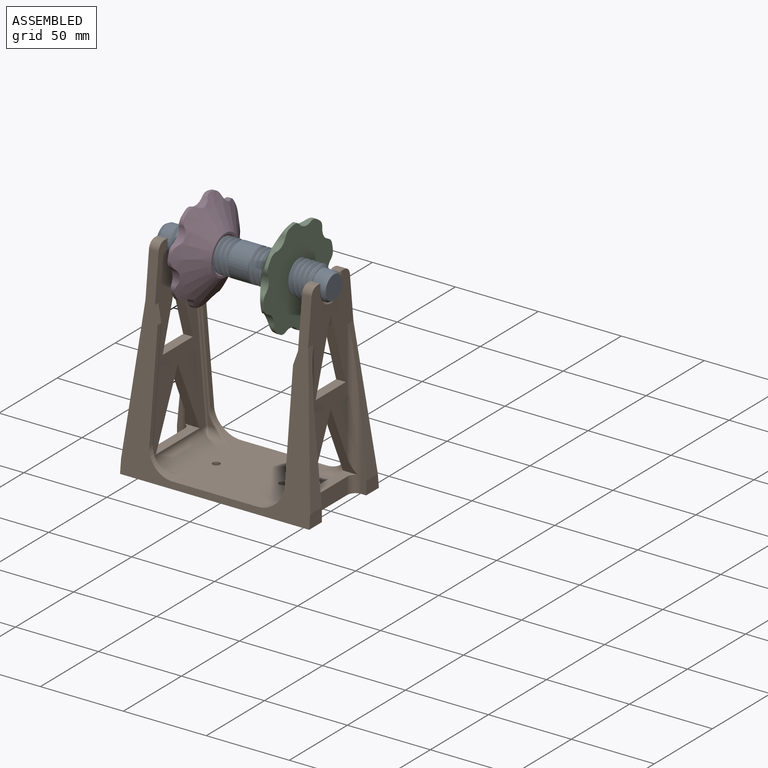
[diagram: assembled view]
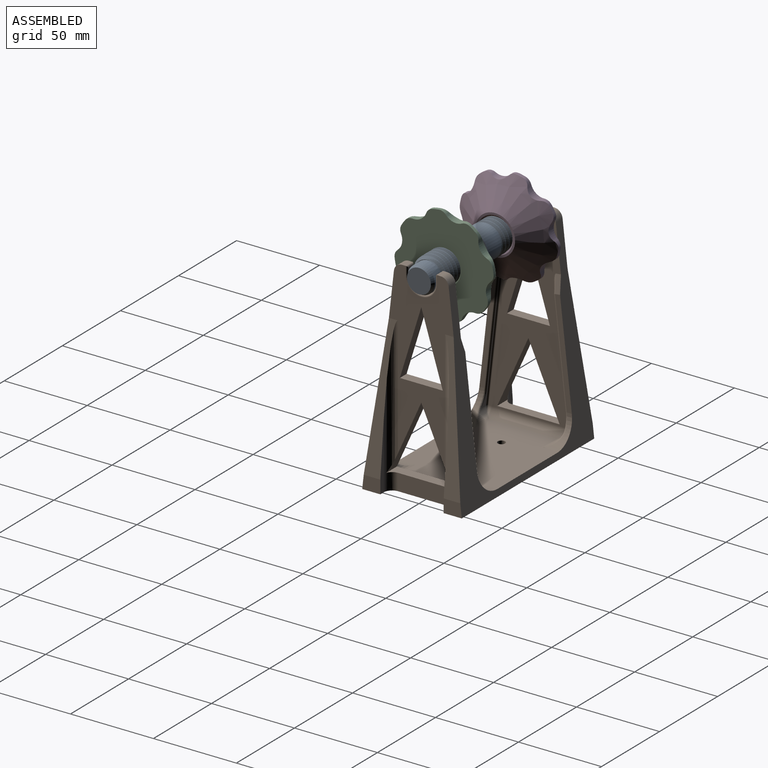
[diagram: assembled view, second angle]
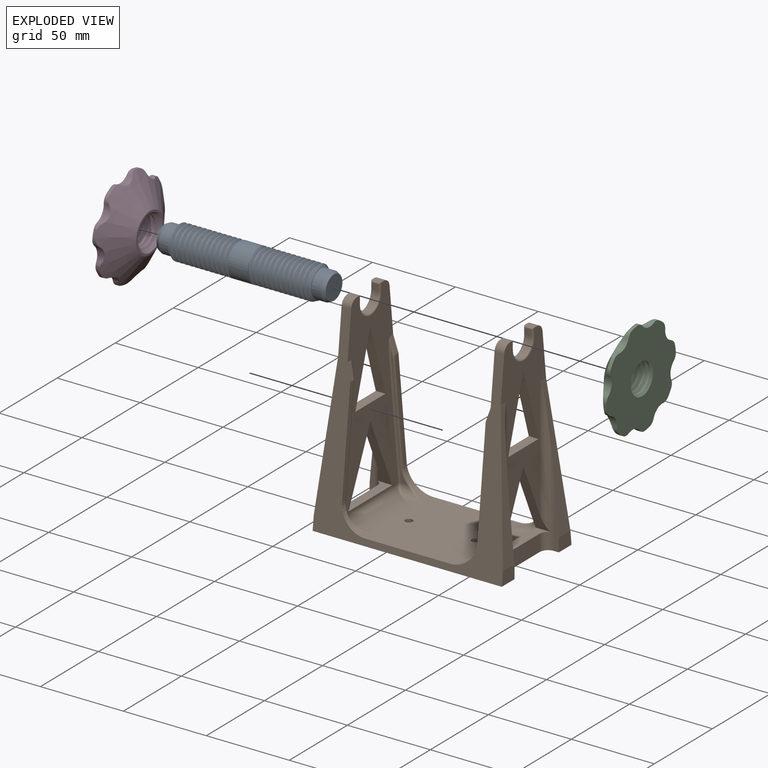
[diagram: exploded view]
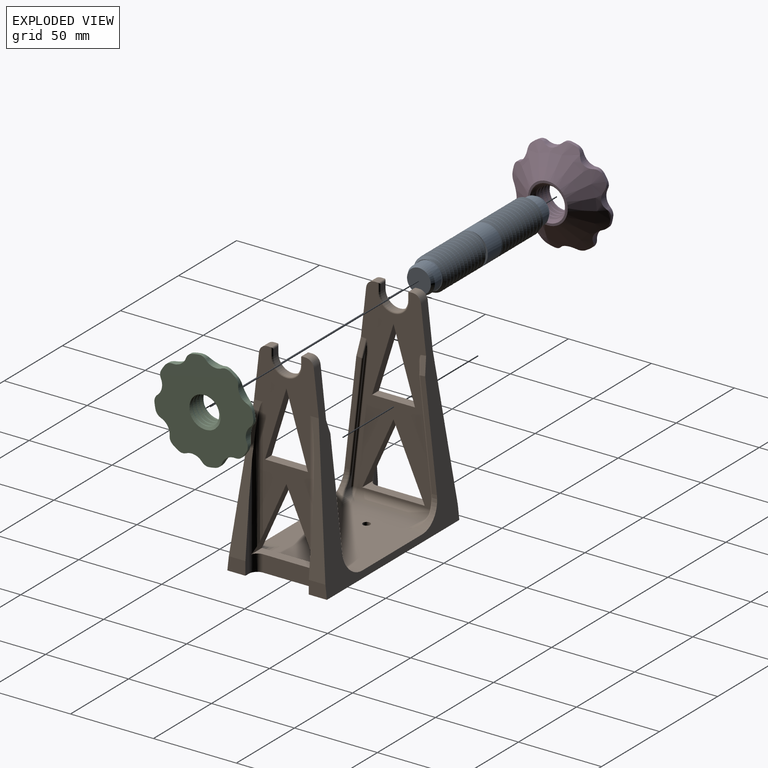
[diagram: exploded view, second angle]
ASSEMBLY  parts=4 mates=5
PART A: 43 faces, bbox 20.8x23.9x102.8 mm
  f0: cylinder r=10mm len=1.67mm, axis (0,0,-1), area 0.1mm2, adj f1,f27,f29
  f1: cylinder r=10mm len=20mm, axis (0,0,-1), area 22.6mm2, adj f0,f2,f27,f28,f29
  f2: cylinder r=10mm len=20mm, axis (0,0,-1), area 23.5mm2, adj f1,f3,f27,f28
  f3: cylinder r=10mm len=20mm, axis (0,0,-1), area 23.6mm2, adj f2,f4,f27,f28
  f4: cylinder r=10mm len=20mm, axis (0,0,-1), area 23.5mm2, adj f3,f5,f27,f28
  f5: cylinder r=10mm len=20mm, axis (0,0,-1), area 23.6mm2, adj f4,f6,f27,f28
  f6: cylinder r=10mm len=20mm, axis (0,0,-1), area 23.6mm2, adj f5,f7,f27,f28
  f7: cylinder r=10mm len=20mm, axis (0,0,-1), area 23.5mm2, adj f6,f8,f27,f28
  f8: cylinder r=10mm len=20mm, axis (0,0,-1), area 23.6mm2, adj f7,f9,f27,f28
  f9: cylinder r=10mm len=20mm, axis (0,0,-1), area 23.5mm2, adj f8,f10,f27,f28
  f10: cylinder r=10mm len=20mm, axis (0,0,-1), area 23.6mm2, adj f9,f11,f27,f28
  f11: cylinder r=10mm len=20mm, axis (0,0,-1), area 23.5mm2, adj f10,f12,f27,f28
  f12: cylinder r=10mm len=20mm, axis (0,0,-1), area 797.9mm2, adj f11,f13,f27,f28,f30,f31,f34,f35
  f13: cylinder r=10mm len=20mm, axis (0,0,-1), area 23.6mm2, adj f12,f14,f34,f35
  f14: cylinder r=10mm len=20mm, axis (0,0,-1), area 23.5mm2, adj f13,f15,f34,f35
  f15: cylinder r=10mm len=20mm, axis (0,0,-1), area 23.6mm2, adj f14,f16,f34,f35
  f16: cylinder r=10mm len=20mm, axis (0,0,-1), area 23.5mm2, adj f15,f17,f34,f35
  f17: cylinder r=10mm len=20mm, axis (0,0,-1), area 23.6mm2, adj f16,f18,f34,f35
  f18: cylinder r=10mm len=20mm, axis (0,0,-1), area 23.6mm2, adj f17,f19,f34,f35
  f19: cylinder r=10mm len=20mm, axis (0,0,-1), area 23.5mm2, adj f18,f20,f34,f35
  f20: cylinder r=10mm len=20mm, axis (0,0,-1), area 23.6mm2, adj f19,f21,f34,f35
  f21: cylinder r=10mm len=20mm, axis (0,0,-1), area 23.5mm2, adj f20,f22,f34,f35
  f22: cylinder r=10mm len=20mm, axis (0,0,-1), area 23.6mm2, adj f21,f23,f34,f35
  f23: cylinder r=10mm len=20mm, axis (0,0,-1), area 22.5mm2, adj f22,f24,f34,f35,f36
  f24: cylinder r=10mm len=1.67mm, axis (0,0,-1), area 0.1mm2, adj f23,f34,f36
  f25: plane 17.11x16.94mm, normal (0,0,1), area 12.5mm2, adj f26,f27,f28,f29,f40
  f26: bspline ~39.25x19.34mm, area 537.9mm2, adj f25,f27,f28,f30
  f27: bspline ~39.44x23.09mm, area 1314.1mm2, adj f0,f1,f2,f3,f4,f5,f6,f7
  f28: bspline ~38.44x23.09mm, area 1316.2mm2, adj f1,f2,f3,f4,f5,f6,f7,f8
  f29: cone r=10mm half-angle=49.1deg, axis (0,0,-1), area 46.7mm2, adj f0,f1,f25,f27,f28
  f30: plane 20.84x20.84mm, normal (0,0,1), area 55mm2, adj f12,f26,f27,f28
  f31: plane 20.84x20.84mm, normal (0,0,-1), area 55mm2, adj f12,f33,f34,f35
  f32: plane 17.11x16.94mm, normal (0,0,-1), area 12.5mm2, adj f33,f34,f35,f36,f37
  f33: bspline ~39.25x19.34mm, area 537.9mm2, adj f31,f32,f34,f35
  f34: bspline ~39.44x23.09mm, area 1314.1mm2, adj f12,f13,f14,f15,f16,f17,f18,f19
  f35: bspline ~38.44x23.09mm, area 1316.2mm2, adj f12,f13,f14,f15,f16,f17,f18,f19
  f36: cone r=10mm half-angle=49.1deg, axis (0,0,1), area 46.7mm2, adj f23,f24,f32,f34,f35
  f37: cylinder r=8.2mm len=16.4mm, axis (0,0,1), area 309.1mm2, adj f32,f39
  f38: plane 14.4x14.4mm, normal (0,0,-1), area 162.9mm2, adj f39
  f39: cone r=8.2mm half-angle=26.6deg, axis (0,0,1), area 108.2mm2, adj f37,f38
  f40: cylinder r=8.2mm len=16.4mm, axis (0,0,-1), area 309.1mm2, adj f25,f42
  f41: plane 14.4x14.4mm, normal (0,0,1), area 162.9mm2, adj f42
  f42: cone r=7.2mm half-angle=26.6deg, axis (0,0,-1), area 108.2mm2, adj f40,f41
PART B: 134 faces, bbox 114x60x124 mm
  f0: plane 28.19x10mm, normal (1,0,0), area 281.9mm2, adj f13,f40,f132,f133
  f1: plane 28.19x10mm, normal (-1,0,0), area 281.9mm2, adj f13,f44,f130,f131
  f2: plane 103.48x39mm, normal (-1,0,0), area 1915.9mm2, adj f7,f9,f28,f29,f31,f36,f37,f45
  f3: plane 103.48x39mm, normal (1,0,0), area 1915.9mm2, adj f8,f10,f23,f25,f27,f36,f37,f38
  f4: plane 115x47.85mm, normal (1,0,0), area 2773.7mm2, adj f7,f9,f32,f34,f35,f36,f37,f44
  f5: plane 76.4x59.1mm, normal (0,0,1), area 4007.9mm2, adj f11,f12,f36,f37,f62,f63,f64,f65
  f6: plane 115x47.9mm, normal (-1,0,0), area 2794.1mm2, adj f8,f10,f20,f22,f24,f36,f37,f38
  f7: plane 5.8x2.13mm, normal (0,0,1), area 12.4mm2, adj f2,f4,f30,f51
  f8: plane 5.8x2.13mm, normal (0,0,1), area 12.4mm2, adj f3,f6,f26,f53
  f9: plane 5.8x2.13mm, normal (0,0,1), area 12.4mm2, adj f2,f4,f33,f50
  f10: plane 5.8x2.13mm, normal (0,0,1), area 12.4mm2, adj f3,f6,f21,f52
  f11: cylinder r=2.2mm len=4.4mm, axis (0,0,-1), area 55.3mm2, adj f5,f13
  f12: cylinder r=2.2mm len=4.4mm, axis (0,0,-1), area 55.3mm2, adj f5,f13
  f13: plane 114x60mm, normal (0,0,-1), area 6220mm2, adj f0,f1,f11,f12,f36,f37,f118,f119
  f14: plane 4x3.8mm, normal (0,1,0), area 15.2mm2, adj f15,f20,f21,f23
  f15: cylinder r=8.4mm len=16.8mm, axis (-1,0,0), area 100.3mm2, adj f14,f16,f22,f25
  f16: plane 4x3.8mm, normal (0,-1,0), area 15.2mm2, adj f15,f24,f26,f27
  f17: plane 4x3.8mm, normal (0,-1,0), area 15.2mm2, adj f18,f28,f30,f32
  f18: cylinder r=8.4mm len=16.8mm, axis (-1,0,0), area 100.3mm2, adj f17,f19,f29,f34
  f19: plane 4x3.8mm, normal (0,1,0), area 15.2mm2, adj f18,f31,f33,f35
  f20: cylinder r=1mm len=5mm, axis (0,0,-1), area 7.3mm2, adj f6,f14,f21,f22
  f21: cylinder r=1mm len=5.8mm, axis (1,0,0), area 8mm2, adj f10,f14,f20,f23
  f22: torus R=9.4mm, axis (1,0,0), area 43.2mm2, adj f6,f15,f20,f24
  f23: cylinder r=1mm len=5mm, axis (0,0,1), area 7.3mm2, adj f3,f14,f21,f25
  f24: cylinder r=1mm len=5mm, axis (0,0,1), area 7.3mm2, adj f6,f16,f22,f26
  f25: torus R=9.4mm, axis (-1,0,0), area 43.2mm2, adj f3,f15,f23,f27
  f26: cylinder r=1mm len=5.8mm, axis (-1,0,0), area 8mm2, adj f8,f16,f24,f27
  f27: cylinder r=1mm len=5mm, axis (0,0,-1), area 7.3mm2, adj f3,f16,f25,f26
  f28: cylinder r=1mm len=5mm, axis (0,0,1), area 7.3mm2, adj f2,f17,f29,f30
  f29: torus R=9.4mm, axis (-1,0,0), area 43.2mm2, adj f2,f18,f28,f31
  f30: cylinder r=1mm len=5.8mm, axis (-1,0,0), area 8mm2, adj f7,f17,f28,f32
  f31: cylinder r=1mm len=5mm, axis (0,0,-1), area 7.3mm2, adj f2,f19,f29,f33
  f32: cylinder r=1mm len=5mm, axis (0,0,-1), area 7.3mm2, adj f4,f17,f30,f34
  f33: cylinder r=1mm len=5.8mm, axis (1,0,0), area 8mm2, adj f9,f19,f31,f35
  f34: torus R=9.4mm, axis (1,0,0), area 43.2mm2, adj f4,f18,f32,f35
  f35: cylinder r=1mm len=5mm, axis (0,0,1), area 7.3mm2, adj f4,f19,f33,f34
  f36: plane 119.56x114mm, normal (0,0.99,0.11), area 3052.1mm2, adj f2,f3,f4,f5,f6,f13,f51,f53
  f37: plane 119.56x114mm, normal (0,-0.99,0.11), area 3052.1mm2, adj f2,f3,f4,f5,f6,f13,f50,f52
  f38: plane 42x18.81mm, normal (0,-0.91,-0.41), area 277.3mm2, adj f3,f6,f39,f40,f132
  f39: plane 42x18.81mm, normal (0,0.91,-0.41), area 277.3mm2, adj f3,f6,f38,f40,f133
  f40: plane 37.62x9.12mm, normal (0,0,1), area 226.7mm2, adj f0,f6,f38,f39,f132,f133
  f41: plane 42x12.94mm, normal (0,-0.96,-0.29), area 254.9mm2, adj f3,f6,f42,f43
  f42: plane 42x12.94mm, normal (0,0.96,-0.29), area 254.9mm2, adj f3,f6,f41,f43
  f43: plane 25.87x5.8mm, normal (0,0,1), area 150.1mm2, adj f3,f6,f41,f42
  f44: plane 37.62x9.12mm, normal (0,0,1), area 226.7mm2, adj f1,f4,f45,f46,f130,f131
  f45: plane 42x18.81mm, normal (0,0.91,-0.41), area 277.3mm2, adj f2,f4,f44,f46,f130
  f46: plane 42x18.81mm, normal (0,-0.91,-0.41), area 277.3mm2, adj f2,f4,f44,f45,f131
  f47: plane 25.87x5.8mm, normal (0,0,1), area 150.1mm2, adj f2,f4,f48,f49
  f48: plane 42x12.94mm, normal (0,0.96,-0.29), area 254.9mm2, adj f2,f4,f47,f49
  f49: plane 42x12.94mm, normal (0,-0.96,-0.29), area 254.9mm2, adj f2,f4,f47,f48
  f50: cylinder r=5mm len=5.8mm, axis (1,0,0), area 42.3mm2, adj f2,f4,f9,f37
  f51: cylinder r=5mm len=5.8mm, axis (-1,0,0), area 42.3mm2, adj f2,f4,f7,f36
  f52: cylinder r=5mm len=5.8mm, axis (1,0,0), area 42.3mm2, adj f3,f6,f10,f37
  f53: cylinder r=5mm len=5.8mm, axis (-1,0,0), area 42.3mm2, adj f3,f6,f8,f36
  f54: plane 73.17x8.28mm, normal (0,0.99,-0.11), area 38.2mm2, adj f69,f77,f79,f82,f84
  f55: plane 62.85x10.07mm, normal (-1,0,0), area 188.3mm2, adj f37,f65,f78,f79
  f56: plane 73.17x8.28mm, normal (0,-0.99,-0.11), area 38.2mm2, adj f71,f88,f89,f92,f95
  f57: plane 62.85x10.07mm, normal (-1,0,0), area 188.3mm2, adj f36,f64,f89,f90
  f58: plane 73.49x8.3mm, normal (0,0.99,-0.11), area 38.2mm2, adj f68,f108,f109,f112,f115
  f59: plane 62.84x10.08mm, normal (1,0,0), area 189.2mm2, adj f37,f62,f109,f110
  f60: plane 73.49x8.3mm, normal (0,-0.99,-0.11), area 38.2mm2, adj f66,f99,f100,f102,f104
  f61: plane 62.96x10.09mm, normal (1,0,0), area 189.6mm2, adj f36,f63,f74,f100
  f62: cylinder r=15mm len=15mm, axis (0,1,0), area 106.9mm2, adj f5,f37,f59,f107,f108
  f63: cylinder r=15mm len=15mm, axis (0,1,0), area 106.9mm2, adj f5,f36,f61,f98,f99
  f64: cylinder r=15mm len=15mm, axis (0,1,0), area 106.3mm2, adj f5,f36,f57,f87,f88
  f65: cylinder r=15mm len=15mm, axis (0,1,0), area 106.3mm2, adj f5,f37,f55,f76,f77
  f66: cylinder r=5mm len=16.4mm, axis (1,0,0), area 65mm2, adj f5,f60,f98,f105,f106
  f67: cylinder r=5mm len=47.85mm, axis (0,1,0), area 353mm2, adj f4,f5,f106,f117
  f68: cylinder r=5mm len=16.4mm, axis (-1,0,0), area 65mm2, adj f5,f58,f107,f116,f117
  f69: cylinder r=5mm len=16.4mm, axis (-1,0,0), area 65mm2, adj f5,f54,f76,f85,f86
  f70: cylinder r=5mm len=47.9mm, axis (0,-1,0), area 353.4mm2, adj f5,f6,f86,f97
  f71: cylinder r=5mm len=16.4mm, axis (1,0,0), area 65mm2, adj f5,f56,f87,f96,f97
  f72: plane 8.01x3.84mm, normal (-0.96,0.03,0.29), area 24.1mm2, adj f37,f78,f81,f82
  f73: plane 8.01x3.84mm, normal (-0.96,-0.03,0.29), area 24.1mm2, adj f36,f90,f92,f93
  f74: plane 10.16x4.09mm, normal (0.97,-0.03,0.23), area 30.5mm2, adj f36,f61,f101,f102
  f75: plane 10.04x4.08mm, normal (0.97,0.03,0.23), area 30.1mm2, adj f37,f110,f112,f113
  f76: bspline ~13.81x7.42mm, area 12.9mm2, adj f65,f69,f77
  f77: bspline ~13.07x4.56mm, area 15.4mm2, adj f54,f65,f76,f79
  f78: cylinder r=1mm len=3.01mm, axis (0,0.99,-0.11), area 0.9mm2, adj f37,f55,f72,f80
  f79: cylinder r=1mm len=62.63mm, axis (0,0.11,0.99), area 98.8mm2, adj f54,f55,f77,f80
  f80: sphere r=1mm, area 0.2mm2, adj f78,f79,f82
  f81: cylinder r=1mm len=3.01mm, axis (0,0.99,-0.11), area 0.9mm2, adj f6,f37,f72,f83
  f82: cylinder r=1mm len=8.07mm, axis (-0.29,-0.11,-0.95), area 8.9mm2, adj f54,f72,f80,f83
  f83: bspline ~7.14x1.39mm, area 7.2mm2, adj f6,f81,f82,f84
  f84: cylinder r=1mm len=73.28mm, axis (0,0.11,0.99), area 115.7mm2, adj f6,f54,f83,f85
  f85: torus R=4mm, axis (1,0,0), area 0.8mm2, adj f6,f69,f84,f86
  f86: bspline ~5.78x5mm, area 8.5mm2, adj f69,f70,f85
  f87: bspline ~13.81x7.42mm, area 12.9mm2, adj f64,f71,f88
  f88: bspline ~13.07x4.56mm, area 15.4mm2, adj f56,f64,f87,f89
  f89: cylinder r=1mm len=62.63mm, axis (0,0.11,-0.99), area 98.8mm2, adj f56,f57,f88,f91
  f90: cylinder r=1mm len=3.01mm, axis (0,0.99,0.11), area 0.9mm2, adj f36,f57,f73,f91
  f91: sphere r=1mm, area 0.2mm2, adj f89,f90,f92
  f92: cylinder r=1mm len=8.07mm, axis (0.29,-0.11,0.95), area 8.9mm2, adj f56,f73,f91,f94
  f93: cylinder r=1mm len=3.01mm, axis (0,-0.99,-0.11), area 0.9mm2, adj f6,f36,f73,f94
  f94: bspline ~7.14x1.39mm, area 7.2mm2, adj f6,f92,f93,f95
  f95: cylinder r=1mm len=73.28mm, axis (0,0.11,-0.99), area 115.7mm2, adj f6,f56,f94,f96
  f96: torus R=4mm, axis (1,0,0), area 0.8mm2, adj f6,f71,f95,f97
  f97: bspline ~5.78x5mm, area 8.5mm2, adj f70,f71,f96
  f98: bspline ~13.81x7.42mm, area 12.9mm2, adj f63,f66,f99
  f99: bspline ~9.44x3.81mm, area 15.4mm2, adj f60,f63,f98,f100
  f100: cylinder r=1mm len=62.73mm, axis (0,-0.11,0.99), area 98.9mm2, adj f60,f61,f99,f102
  f101: cylinder r=1mm len=3.01mm, axis (0,-0.99,-0.11), area 0.7mm2, adj f4,f36,f74,f103
  f102: cylinder r=1mm len=10.17mm, axis (-0.23,-0.11,0.97), area 11.1mm2, adj f60,f74,f100,f103
  f103: bspline ~8.74x1.27mm, area 8.8mm2, adj f4,f101,f102,f104
  f104: cylinder r=1mm len=73.6mm, axis (0,0.11,-0.99), area 116.2mm2, adj f4,f60,f103,f105
  f105: torus R=4mm, axis (1,0,0), area 0.8mm2, adj f4,f66,f104,f106
  f106: bspline ~5.78x5mm, area 8.5mm2, adj f66,f67,f105
  f107: bspline ~13.81x7.42mm, area 12.9mm2, adj f62,f68,f108
  f108: bspline ~9.44x3.81mm, area 15.4mm2, adj f58,f62,f107,f109
  f109: cylinder r=1mm len=62.61mm, axis (0,-0.11,-0.99), area 98.8mm2, adj f58,f59,f108,f111
  f110: cylinder r=1mm len=3.01mm, axis (0,0.99,-0.11), area 0.7mm2, adj f37,f59,f75,f111
  f111: sphere r=1mm, area 0.2mm2, adj f109,f110,f112
  f112: cylinder r=1mm len=10.05mm, axis (0.23,-0.11,-0.97), area 11mm2, adj f58,f75,f111,f114
  f113: cylinder r=1mm len=3.01mm, axis (0,0.99,-0.11), area 0.7mm2, adj f4,f37,f75,f114
  f114: bspline ~8.74x1.27mm, area 8.8mm2, adj f4,f112,f113,f115
  f115: cylinder r=1mm len=73.6mm, axis (0,0.11,0.99), area 116.2mm2, adj f4,f58,f114,f116
  f116: torus R=4mm, axis (1,0,0), area 0.8mm2, adj f4,f68,f115,f117
  f117: bspline ~5.78x5mm, area 8.5mm2, adj f67,f68,f116
  f118: plane 39.88x3mm, normal (0,1,0), area 71.8mm2, adj f13,f119,f123,f133
  f119: plane 10.9x8mm, normal (1,0,0), area 83.6mm2, adj f13,f37,f118,f123
  f120: plane 39.88x3mm, normal (0,-1,0), area 71.8mm2, adj f13,f121,f122,f132
  f121: plane 10.9x8mm, normal (1,0,0), area 83.6mm2, adj f13,f36,f120,f122
  f122: plane 85x15mm, normal (1,0,0.09), area 501.3mm2, adj f3,f36,f120,f121,f132
  f123: plane 85x15mm, normal (1,0,0.09), area 501.3mm2, adj f3,f37,f118,f119,f133
  f124: plane 39.88x3mm, normal (0,-1,0), area 71.8mm2, adj f13,f125,f129,f131
  f125: plane 10.9x8mm, normal (-1,0,0), area 83.6mm2, adj f13,f36,f124,f129
  f126: plane 39.88x3mm, normal (0,1,0), area 71.8mm2, adj f13,f127,f128,f130
  f127: plane 10.9x8mm, normal (-1,0,0), area 83.6mm2, adj f13,f37,f126,f128
  f128: plane 85x15mm, normal (-1,0,0.09), area 501.3mm2, adj f2,f37,f126,f127,f130
  f129: plane 85x15mm, normal (-1,0,0.09), area 501.3mm2, adj f2,f36,f124,f125,f131
  f130: cylinder r=5mm len=93mm, axis (0,0,-1), area 551.3mm2, adj f1,f2,f13,f44,f45,f126,f128
  f131: cylinder r=5mm len=93mm, axis (0,0,1), area 551.3mm2, adj f1,f2,f13,f44,f46,f124,f129
  f132: cylinder r=5mm len=93mm, axis (0,0,1), area 551.3mm2, adj f0,f3,f13,f38,f40,f120,f122
  f133: cylinder r=5mm len=93mm, axis (0,0,-1), area 551.3mm2, adj f0,f3,f13,f39,f40,f118,f123
PART C: 40 faces, bbox 60.9x60.9x16.8 mm
  f0: cylinder r=30mm len=3.42mm, axis (0,0,-1), area 8.3mm2, adj f7,f10,f36,f38
  f1: cylinder r=30mm len=4.11mm, axis (0,0,-1), area 8.3mm2, adj f7,f10,f35,f37
  f2: cylinder r=30mm len=3.42mm, axis (0,0,-1), area 8.3mm2, adj f7,f10,f33,f34
  f3: cylinder r=30mm len=4.11mm, axis (0,0,-1), area 8.3mm2, adj f7,f10,f31,f32
  f4: cylinder r=30mm len=3.42mm, axis (0,0,-1), area 8.3mm2, adj f7,f10,f29,f30
  f5: cylinder r=30mm len=4.11mm, axis (0,0,-1), area 8.3mm2, adj f7,f10,f27,f28
  f6: cylinder r=30mm len=3.42mm, axis (0,0,-1), area 8.3mm2, adj f7,f10,f25,f26
  f7: plane 60.6x60.6mm, normal (0,0,-1), area 2239.9mm2, adj f0,f1,f2,f3,f4,f5,f6,f8
  f8: cylinder r=30mm len=4.11mm, axis (0,0,-1), area 8.3mm2, adj f7,f10,f24,f39
  f9: plane 24x24mm, normal (0,0,1), area 92.7mm2, adj f10,f15
  f10: cone r=12mm half-angle=56.3deg, axis (0,0,-1), area 2454.9mm2, adj f0,f1,f2,f3,f4,f5,f6,f8
  f11: bspline ~23.84x20.65mm, area 480.2mm2, adj f7,f13,f14,f15
  f12: bspline ~23.84x20.65mm, area 479.7mm2, adj f7,f13,f14,f15
  f13: bspline ~24.16x20.92mm, area 128.8mm2, adj f7,f11,f12,f15
  f14: cylinder r=8.7mm len=17.4mm, axis (0,0,1), area 165.5mm2, adj f7,f11,f12,f15
  f15: cone r=10.7mm half-angle=45deg, axis (0,0,1), area 112.7mm2, adj f9,f11,f12,f13,f14
  f16: cylinder r=8mm len=9.54mm, axis (0,0,-1), area 34.4mm2, adj f7,f10,f38,f39
  f17: cylinder r=8mm len=8.24mm, axis (0,0,-1), area 34.4mm2, adj f7,f10,f24,f25
  f18: cylinder r=8mm len=9.54mm, axis (0,0,-1), area 34.4mm2, adj f7,f10,f26,f27
  f19: cylinder r=8mm len=8.24mm, axis (0,0,-1), area 34.4mm2, adj f7,f10,f28,f29
  f20: cylinder r=8mm len=9.54mm, axis (0,0,-1), area 34.4mm2, adj f7,f10,f30,f31
  f21: cylinder r=8mm len=8.24mm, axis (0,0,-1), area 34.4mm2, adj f7,f10,f32,f33
  f22: cylinder r=8mm len=9.54mm, axis (0,0,-1), area 34.4mm2, adj f7,f10,f34,f35
  f23: cylinder r=8mm len=8.24mm, axis (0,0,-1), area 34.4mm2, adj f7,f10,f36,f37
  f24: cylinder r=5mm len=3.49mm, axis (0,0,1), area 12.9mm2, adj f7,f8,f10,f17
  f25: cylinder r=5mm len=4.33mm, axis (0,0,1), area 12.9mm2, adj f6,f7,f10,f17
  f26: cylinder r=5mm len=4.7mm, axis (0,0,1), area 12.9mm2, adj f6,f7,f10,f18
  f27: cylinder r=5mm len=4.36mm, axis (0,0,1), area 12.9mm2, adj f5,f7,f10,f18
  f28: cylinder r=5mm len=3.49mm, axis (0,0,1), area 12.9mm2, adj f5,f7,f10,f19
  f29: cylinder r=5mm len=4.33mm, axis (0,0,1), area 12.9mm2, adj f4,f7,f10,f19
  f30: cylinder r=5mm len=4.7mm, axis (0,0,1), area 12.9mm2, adj f4,f7,f10,f20
  f31: cylinder r=5mm len=4.36mm, axis (0,0,1), area 12.9mm2, adj f3,f7,f10,f20
  f32: cylinder r=5mm len=3.49mm, axis (0,0,1), area 12.9mm2, adj f3,f7,f10,f21
  f33: cylinder r=5mm len=4.33mm, axis (0,0,1), area 12.9mm2, adj f2,f7,f10,f21
  f34: cylinder r=5mm len=4.7mm, axis (0,0,1), area 12.9mm2, adj f2,f7,f10,f22
  f35: cylinder r=5mm len=4.36mm, axis (0,0,1), area 12.9mm2, adj f1,f7,f10,f22
  f36: cylinder r=5mm len=4.33mm, axis (0,0,1), area 12.9mm2, adj f0,f7,f10,f23
  f37: cylinder r=5mm len=3.49mm, axis (0,0,1), area 12.9mm2, adj f1,f7,f10,f23
  f38: cylinder r=5mm len=4.7mm, axis (0,0,1), area 12.9mm2, adj f0,f7,f10,f16
  f39: cylinder r=5mm len=4.36mm, axis (0,0,1), area 12.9mm2, adj f7,f8,f10,f16
PART D: same geometry as C
PLACE A rot(axis=(0,1,0),90deg) t=(-42.69,0.92,97.83)mm
PLACE B t=(0.31,0.92,-21.17)mm
PLACE C rot(axis=(-0.58,-0.58,0.58),120deg) t=(29.71,0.92,97.83)mm
PLACE D rot(axis=(0.34,0.88,0.34),97.5deg) t=(-28.29,0.92,97.83)mm
MATE cylindrical C.f0 <-> A.f0  axis (-1,0,0) through (15.71,0.92,97.83)mm
MATE cylindrical D.f0 <-> A.f0  axis (1,0,0) through (-14.29,0.92,97.83)mm
MATE cylindrical C.f0 <-> A.f0  axis (1,0,0) through (28.71,0.92,97.83)mm
MATE revolute A.f37 <-> B.f15  axis (1,0,0) through (-42.69,0.92,97.83)mm
MATE cylindrical D.f0 <-> A.f0  axis (-1,0,0) through (-20.29,0.92,97.83)mm
